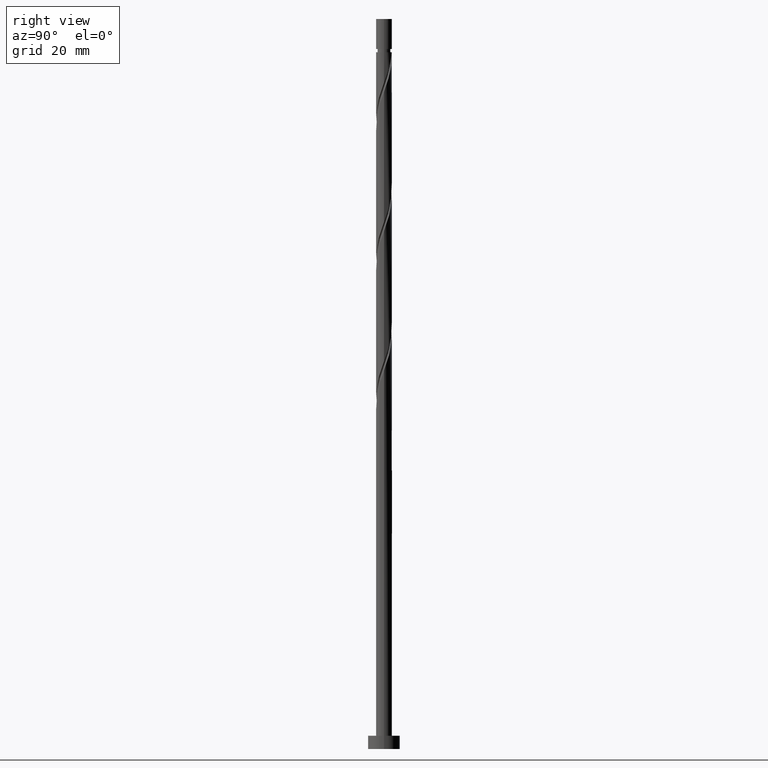
[diagram: clean part render]
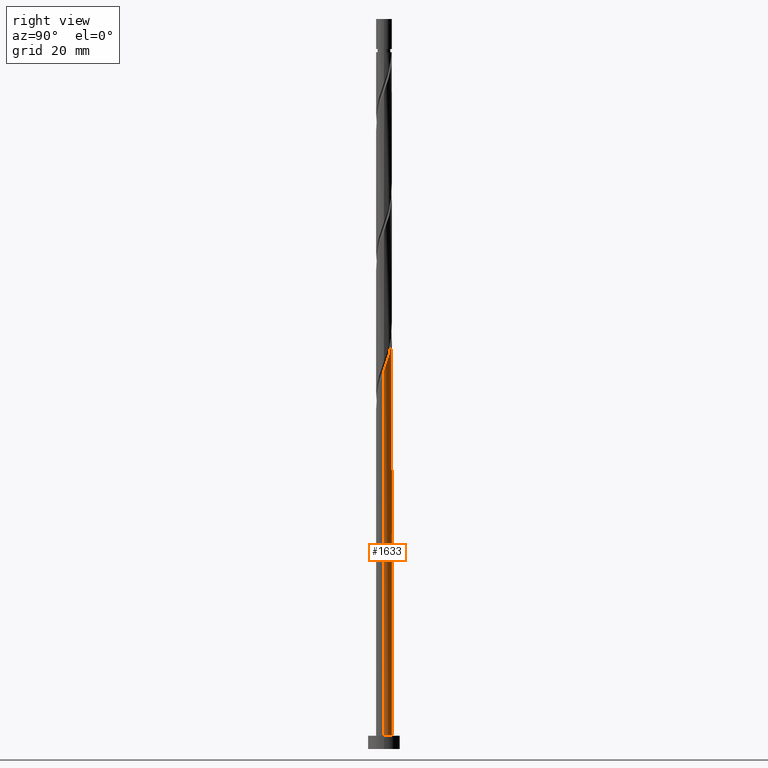
[diagram: same view with one face highlighted and labeled with its STEP entity id]
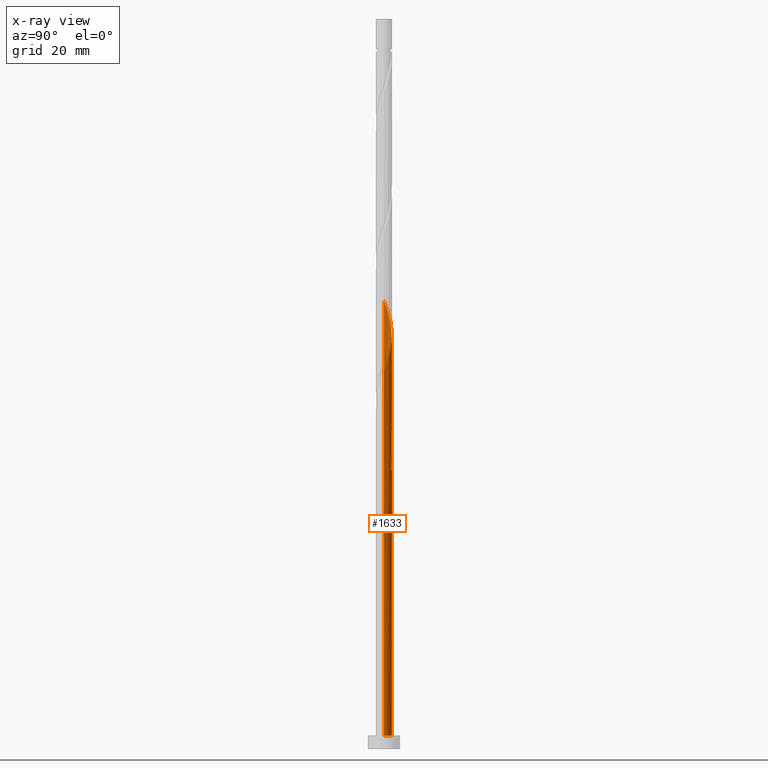
[diagram: x-ray of the same camera — body ghosted, the highlighted face saturated]
A machine part, right view. The second image highlights one B-rep face of the part: STEP entity #1633.
The next image is the same camera in x-ray: the body ghosted, the highlighted face saturated — about 0% of this face is hidden behind the body in this view.
In plain terms, the highlighted cylindrical surface (edge-blend (fillet) strip) has radius 3 mm, axis along (-0, -0, -1).
Its self-contained STEP definition (entity closure, byte-faithful):
#6 = EDGE_CURVE ( 'NONE', #752, #224, #465, .T. ) ;
#12 = CARTESIAN_POINT ( 'NONE',  ( -1.667239772048620727, 2.516856822501207791, 111.5294641503445519 ) ) ;
#30 = CARTESIAN_POINT ( 'NONE',  ( 0.5969924622639732892, 2.939999999999999947, 104.9669641503445376 ) ) ;
#50 = CARTESIAN_POINT ( 'NONE',  ( -2.940000000000000835, 0.5969924622639728451, 118.0919641503445234 ) ) ;
#71 = CARTESIAN_POINT ( 'NONE',  ( -3.000000000000004441, 0.03609869149918232961, 168.8170843842133593 ) ) ;
#73 = EDGE_CURVE ( 'NONE', #699, #552, #1096, .T. ) ;
#112 = CARTESIAN_POINT ( 'NONE',  ( -2.389823149881022513, 1.813489815877870059, 114.3419641503445234 ) ) ;
#115 = CARTESIAN_POINT ( 'NONE',  ( -1.544221415739432945, 2.594154378914896419, 160.2794641503445234 ) ) ;
#159 = AXIS2_PLACEMENT_3D ( 'NONE', #619, #460, #1178 ) ;
#163 = CYLINDRICAL_SURFACE ( 'NONE', #471, 3.000000000000000444 ) ;
#219 = CARTESIAN_POINT ( 'NONE',  ( 0.7377465701333740800, 2.907873793385206795, 153.7169641503445519 ) ) ;
#224 = VERTEX_POINT ( 'NONE', #1802 ) ;
#229 = CARTESIAN_POINT ( 'NONE',  ( 1.667239772048623614, 2.516856822501209567, 150.9044641503445234 ) ) ;
#238 = CARTESIAN_POINT ( 'NONE',  ( 2.389823149881026065, 1.813489815877872058, 148.0919641503445234 ) ) ;
#250 = CARTESIAN_POINT ( 'NONE',  ( -3.000000000000000444, 0.000000000000000000, 275.0000000000000000 ) ) ;
#255 = CARTESIAN_POINT ( 'NONE',  ( -2.733444741546703138, 1.236236160654865524, 116.2169641503445519 ) ) ;
#311 = CARTESIAN_POINT ( 'NONE',  ( -0.4101078809741731113, 2.990997868343352906, 107.7794641503445376 ) ) ;
#350 = CARTESIAN_POINT ( 'NONE',  ( -2.907873793385206795, 0.7377465701333737469, 114.3419641503445376 ) ) ;
#360 = CARTESIAN_POINT ( 'NONE',  ( -2.907873793385206795, 0.7377465701333737469, 166.8419641503445803 ) ) ;
#361 = CARTESIAN_POINT ( 'NONE',  ( 0.000000000000000000, 0.000000000000000000, 104.9669641503445376 ) ) ;
#362 = CARTESIAN_POINT ( 'NONE',  ( -1.544221415739432945, 2.594154378914896419, 107.7794641503445376 ) ) ;
#369 = CARTESIAN_POINT ( 'NONE',  ( -0.5969924622639722900, 2.940000000000004832, 157.4669641503446087 ) ) ;
#374 = ORIENTED_EDGE ( 'NONE', *, *, #433, .F. ) ;
#380 = CARTESIAN_POINT ( 'NONE',  ( -2.516856822501209567, 1.667239772048623170, 164.0294641503445234 ) ) ;
#395 = VERTEX_POINT ( 'NONE', #1545 ) ;
#415 = VERTEX_POINT ( 'NONE', #1701 ) ;
#418 = CARTESIAN_POINT ( 'NONE',  ( 3.000000000000005329, -8.433062039662194613E-16, 142.6674470724385344 ) ) ;
#433 = EDGE_CURVE ( 'NONE', #395, #1149, #544, .T. ) ;
#456 = CARTESIAN_POINT ( 'NONE',  ( -1.065385259292570996, 2.824749718427052692, 109.6544641503445661 ) ) ;
#460 = DIRECTION ( 'NONE',  ( 0.000000000000000000, 0.000000000000000000, 1.000000000000000000 ) ) ;
#465 = LINE ( 'NONE', #783, #1273 ) ;
#471 = AXIS2_PLACEMENT_3D ( 'NONE', #1189, #1803, #1215 ) ;
#500 = CARTESIAN_POINT ( 'NONE',  ( -0.5969924622639721790, 2.940000000000004832, 104.9669641503445376 ) ) ;
#510 = CARTESIAN_POINT ( 'NONE',  ( -2.990997868343356902, 0.4101078809741742215, 115.2794641503445376 ) ) ;
#525 = CARTESIAN_POINT ( 'NONE',  ( 3.000000000000005329, -8.433062039662193626E-16, 142.6674470724385344 ) ) ;
#531 = CARTESIAN_POINT ( 'NONE',  ( -0.9282509055702996559, 2.872735104178516075, 158.4044641503445234 ) ) ;
#542 = EDGE_CURVE ( 'NONE', #395, #1466, #694, .T. ) ;
#543 = CARTESIAN_POINT ( 'NONE',  ( 1.366312515670599081, 2.670803270464133128, 151.8419641503445519 ) ) ;
#544 =( BOUNDED_CURVE ( )  B_SPLINE_CURVE ( 2, ( #500, #1115, #1266, #362, #1259, #1400, #834, #1843, #1540, #1418, #350, #510, #1105, #652, #814 ),
 .UNSPECIFIED., .F., .T. ) 
 B_SPLINE_CURVE_WITH_KNOTS ( ( 3, 2, 2, 2, 2, 2, 2, 3 ),
 ( 0.000000000000000000, 0.008928571428571396851, 0.01785714285714290472, 0.02678571428571430157, 0.03571428571428569843, 0.04464285714285709528, 0.05357142857142860315, 0.05453034012992209051 ),
 .UNSPECIFIED. ) 
 CURVE ( )  GEOMETRIC_REPRESENTATION_ITEM ( )  RATIONAL_B_SPLINE_CURVE ( ( 0.9090909090909424783, 0.9033747362666175729, 0.9090909090909424783, 0.9033747362666175729, 0.9090909090909424783, 0.9033747362666175729, 0.9090909090909424783, 0.9033747362666175729, 0.9090909090909424783, 0.9033747362666175729, 0.9090909090909424783, 0.9033747362666175729, 0.9090909090909424783, 0.9084770030214842640, 0.9079949616362126275 ) ) 
 REPRESENTATION_ITEM ( '' )  );
#552 = VERTEX_POINT ( 'NONE', #952 ) ;
#563 = CARTESIAN_POINT ( 'NONE',  ( -2.872735104178513410, 0.9282509055702992118, 117.1544641503445661 ) ) ;
#566 = CARTESIAN_POINT ( 'NONE',  ( -3.000000000000000888, 0.3015113445777601320, 118.9282101492870112 ) ) ;
#568 = LINE ( 'NONE', #250, #1507 ) ;
#606 = EDGE_CURVE ( 'NONE', #1149, #415, #568, .T. ) ;
#619 = CARTESIAN_POINT ( 'NONE',  ( 0.000000000000000000, 0.000000000000000000, 5.000000000000000000 ) ) ;
#652 = CARTESIAN_POINT ( 'NONE',  ( -3.000000000000005329, 0.03609869149917187964, 116.3170843842134303 ) ) ;
#661 = EDGE_CURVE ( 'NONE', #552, #1466, #1879, .T. ) ;
#694 = CIRCLE ( 'NONE', #1560, 3.000000000000000444 ) ;
#699 = VERTEX_POINT ( 'NONE', #1346 ) ;
#703 = CARTESIAN_POINT ( 'NONE',  ( 2.594154378914896419, 1.544221415739432279, 147.1544641503444950 ) ) ;
#752 = VERTEX_POINT ( 'NONE', #525 ) ;
#761 = CARTESIAN_POINT ( 'NONE',  ( -1.926365846447885888, 2.299807519258758148, 112.4669641503445376 ) ) ;
#773 = CARTESIAN_POINT ( 'NONE',  ( -3.000000000000000444, 0.000000000000000000, 275.0000000000000000 ) ) ;
#783 = CARTESIAN_POINT ( 'NONE',  ( 3.000000000000000444, 3.673940397442060361E-16, 275.0000000000000000 ) ) ;
#788 = EDGE_CURVE ( 'NONE', #752, #699, #820, .T. ) ;
#814 = CARTESIAN_POINT ( 'NONE',  ( -3.000000000000005329, 4.253845453634912213E-16, 116.4174470724384918 ) ) ;
#816 = ORIENTED_EDGE ( 'NONE', *, *, #661, .F. ) ;
#820 =( BOUNDED_CURVE ( )  B_SPLINE_CURVE ( 2, ( #418, #1396, #1129, #990, #1426, #703, #238, #1290, #1698, #229, #543, #1439, #219, #1022, #873, #1604, #369, #531, #1459, #115, #1314, #979, #1132, #380, #1258, #1103, #360, #1871, #822, #71, #1853 ),
 .UNSPECIFIED., .F., .T. ) 
 B_SPLINE_CURVE_WITH_KNOTS ( ( 3, 2, 2, 2, 2, 2, 2, 2, 2, 2, 2, 2, 2, 2, 2, 3 ),
 ( 0.1795303401299223334, 0.1875000000000000000, 0.1964285714285713969, 0.2053571428571429047, 0.2142857142857143016, 0.2232142857142856984, 0.2321428571428570953, 0.2410714285714286031, 0.2500000000000000000, 0.2589285714285713969, 0.2678571428571429047, 0.2767857142857143016, 0.2857142857142856984, 0.2946428571428570953, 0.3035714285714286031, 0.3045303401299218060 ),
 .UNSPECIFIED. ) 
 CURVE ( )  GEOMETRIC_REPRESENTATION_ITEM ( )  RATIONAL_B_SPLINE_CURVE ( ( 0.9079949616362124054, 0.9039886423360760093, 0.9090909090909424783, 0.9033747362666175729, 0.9090909090909424783, 0.9033747362666175729, 0.9090909090909424783, 0.9033747362666175729, 0.9090909090909424783, 0.9033747362666175729, 0.9090909090909424783, 0.9033747362666175729, 0.9090909090909424783, 0.9033747362666175729, 0.9090909090909424783, 0.9033747362666175729, 0.9090909090909424783, 0.9033747362666175729, 0.9090909090909424783, 0.9033747362666175729, 0.9090909090909424783, 0.9033747362666175729, 0.9090909090909424783, 0.9033747362666175729, 0.9090909090909424783, 0.9033747362666175729, 0.9090909090909424783, 0.9033747362666175729, 0.9090909090909424783, 0.9084770030214844860, 0.9079949616362128495 ) ) 
 REPRESENTATION_ITEM ( '' )  );
#822 = CARTESIAN_POINT ( 'NONE',  ( -2.999131382082425468, 0.07218693100826420461, 168.7169641503445803 ) ) ;
#834 = CARTESIAN_POINT ( 'NONE',  ( -2.299807519258761701, 1.926365846447889663, 110.5919641503445661 ) ) ;
#856 = CARTESIAN_POINT ( 'NONE',  ( -2.185491920847151714, 2.082758216016308506, 113.4044641503445661 ) ) ;
#863 = CARTESIAN_POINT ( 'NONE',  ( -3.000000000000000000, -8.044991928102567306E-15, 119.7664812282506119 ) ) ;
#873 = CARTESIAN_POINT ( 'NONE',  ( 0.07218693100826482911, 2.999131382082425024, 155.5919641503446371 ) ) ;
#893 = ORIENTED_EDGE ( 'NONE', *, *, #6, .T. ) ;
#921 = CARTESIAN_POINT ( 'NONE',  ( -0.07218693100826358011, 2.999131382082420583, 106.8419641503445661 ) ) ;
#933 = DIRECTION ( 'NONE',  ( -0.000000000000000000, -0.000000000000000000, -1.000000000000000000 ) ) ;
#952 = CARTESIAN_POINT ( 'NONE',  ( -3.000000000000000000, -8.044991928102567306E-15, 119.7664812282506119 ) ) ;
#971 = DIRECTION ( 'NONE',  ( 0.000000000000000000, -0.000000000000000000, -1.000000000000000000 ) ) ;
#979 = CARTESIAN_POINT ( 'NONE',  ( -2.082758216016310282, 2.185491920847154379, 162.1544641503444950 ) ) ;
#990 = CARTESIAN_POINT ( 'NONE',  ( 2.872735104178516075, 0.9282509055702992118, 145.2794641503445234 ) ) ;
#1022 = CARTESIAN_POINT ( 'NONE',  ( 0.4101078809741747211, 2.990997868343356902, 154.6544641503445519 ) ) ;
#1063 = CARTESIAN_POINT ( 'NONE',  ( -0.7377465701333723036, 2.907873793385203243, 108.7169641503445519 ) ) ;
#1096 = LINE ( 'NONE', #773, #1427 ) ;
#1103 = CARTESIAN_POINT ( 'NONE',  ( -2.824749718427055800, 1.065385259292572773, 165.9044641503445519 ) ) ;
#1105 = CARTESIAN_POINT ( 'NONE',  ( -2.999131382082425468, 0.07218693100826420461, 116.2169641503445661 ) ) ;
#1115 = CARTESIAN_POINT ( 'NONE',  ( -0.9282509055702996559, 2.872735104178516075, 105.9044641503445376 ) ) ;
#1129 = CARTESIAN_POINT ( 'NONE',  ( 2.940000000000004832, 0.5969924622639725120, 144.3419641503446371 ) ) ;
#1132 = CARTESIAN_POINT ( 'NONE',  ( -2.299807519258761701, 1.926365846447889663, 163.0919641503445234 ) ) ;
#1149 = VERTEX_POINT ( 'NONE', #1720 ) ;
#1178 = DIRECTION ( 'NONE',  ( 1.000000000000000000, 0.000000000000000000, 0.000000000000000000 ) ) ;
#1187 = ORIENTED_EDGE ( 'NONE', *, *, #1320, .T. ) ;
#1189 = CARTESIAN_POINT ( 'NONE',  ( 0.000000000000000000, 0.000000000000000000, 275.0000000000000000 ) ) ;
#1203 = DIRECTION ( 'NONE',  ( -0.000000000000000000, -0.000000000000000000, -1.000000000000000000 ) ) ;
#1215 = DIRECTION ( 'NONE',  ( -1.000000000000000000, 0.000000000000000000, 0.000000000000000000 ) ) ;
#1258 = CARTESIAN_POINT ( 'NONE',  ( -2.670803270464133572, 1.366312515670598415, 164.9669641503444950 ) ) ;
#1259 = CARTESIAN_POINT ( 'NONE',  ( -1.813489815877872502, 2.389823149881026065, 108.7169641503445661 ) ) ;
#1266 = CARTESIAN_POINT ( 'NONE',  ( -1.236236160654866856, 2.733444741546707579, 106.8419641503445661 ) ) ;
#1270 = ORIENTED_EDGE ( 'NONE', *, *, #542, .T. ) ;
#1273 = VECTOR ( 'NONE', #1203, 1000.000000000000000 ) ;
#1277 = ORIENTED_EDGE ( 'NONE', *, *, #606, .F. ) ;
#1290 = CARTESIAN_POINT ( 'NONE',  ( 2.185491920847155267, 2.082758216016309838, 149.0294641503445519 ) ) ;
#1314 = CARTESIAN_POINT ( 'NONE',  ( -1.813489815877872502, 2.389823149881026065, 161.2169641503446087 ) ) ;
#1320 = EDGE_CURVE ( 'NONE', #224, #415, #1476, .T. ) ;
#1344 = CARTESIAN_POINT ( 'NONE',  ( 0.5969924622639732892, 2.939999999999999947, 104.9669641503445376 ) ) ;
#1346 = CARTESIAN_POINT ( 'NONE',  ( -3.000000000000005329, 4.253845453634912213E-16, 168.9174470724385060 ) ) ;
#1396 = CARTESIAN_POINT ( 'NONE',  ( 3.000000000000002220, 0.3015113445777726775, 143.5057181514020783 ) ) ;
#1400 = CARTESIAN_POINT ( 'NONE',  ( -2.082758216016310282, 2.185491920847154379, 109.6544641503445661 ) ) ;
#1418 = CARTESIAN_POINT ( 'NONE',  ( -2.824749718427055800, 1.065385259292572773, 113.4044641503445376 ) ) ;
#1421 = ORIENTED_EDGE ( 'NONE', *, *, #788, .F. ) ;
#1426 = CARTESIAN_POINT ( 'NONE',  ( 2.733444741546707579, 1.236236160654866190, 146.2169641503446087 ) ) ;
#1427 = VECTOR ( 'NONE', #933, 1000.000000000000000 ) ;
#1439 = CARTESIAN_POINT ( 'NONE',  ( 1.065385259292573883, 2.824749718427055356, 152.7794641503445234 ) ) ;
#1459 = CARTESIAN_POINT ( 'NONE',  ( -1.236236160654866856, 2.733444741546707579, 159.3419641503445803 ) ) ;
#1466 = VERTEX_POINT ( 'NONE', #1344 ) ;
#1476 = CIRCLE ( 'NONE', #159, 3.000000000000000444 ) ;
#1502 = CARTESIAN_POINT ( 'NONE',  ( 0.2657340189576460898, 3.007264895821488260, 105.9044641503445519 ) ) ;
#1507 = VECTOR ( 'NONE', #1892, 1000.000000000000000 ) ;
#1508 = FACE_OUTER_BOUND ( 'NONE', #1847, .T. ) ;
#1540 = CARTESIAN_POINT ( 'NONE',  ( -2.670803270464133572, 1.366312515670598415, 112.4669641503445661 ) ) ;
#1545 = CARTESIAN_POINT ( 'NONE',  ( -0.5969924622639721790, 2.940000000000004832, 104.9669641503445376 ) ) ;
#1560 = AXIS2_PLACEMENT_3D ( 'NONE', #361, #971, #1723 ) ;
#1604 = CARTESIAN_POINT ( 'NONE',  ( -0.2657340189576452572, 3.007264895821491812, 156.5294641503445519 ) ) ;
#1633 = ADVANCED_FACE ( 'NONE', ( #1508 ), #163, .T. ) ;
#1698 = CARTESIAN_POINT ( 'NONE',  ( 1.926365846447889885, 2.299807519258761257, 149.9669641503445519 ) ) ;
#1701 = CARTESIAN_POINT ( 'NONE',  ( -3.000000000000000444, 0.000000000000000000, 5.000000000000000000 ) ) ;
#1720 = CARTESIAN_POINT ( 'NONE',  ( -3.000000000000005329, 4.253845453634912213E-16, 116.4174470724384918 ) ) ;
#1723 = DIRECTION ( 'NONE',  ( -1.000000000000000000, 0.000000000000000000, 0.000000000000000000 ) ) ;
#1793 = CARTESIAN_POINT ( 'NONE',  ( -1.366312515670595751, 2.670803270464129131, 110.5919641503445234 ) ) ;
#1802 = CARTESIAN_POINT ( 'NONE',  ( 3.000000000000000444, 3.673940397442060361E-16, 5.000000000000000000 ) ) ;
#1803 = DIRECTION ( 'NONE',  ( -0.000000000000000000, -0.000000000000000000, -1.000000000000000000 ) ) ;
#1843 = CARTESIAN_POINT ( 'NONE',  ( -2.516856822501209567, 1.667239772048623170, 111.5294641503445092 ) ) ;
#1847 = EDGE_LOOP ( 'NONE', ( #1421, #893, #1187, #1277, #374, #1270, #816, #1865 ) ) ;
#1853 = CARTESIAN_POINT ( 'NONE',  ( -3.000000000000005329, 4.253845453634912213E-16, 168.9174470724385060 ) ) ;
#1865 = ORIENTED_EDGE ( 'NONE', *, *, #73, .F. ) ;
#1871 = CARTESIAN_POINT ( 'NONE',  ( -2.990997868343356902, 0.4101078809741742215, 167.7794641503445234 ) ) ;
#1879 =( BOUNDED_CURVE ( )  B_SPLINE_CURVE ( 2, ( #863, #566, #50, #563, #255, #1905, #112, #856, #761, #12, #1793, #456, #1063, #311, #921, #1502, #30 ),
 .UNSPECIFIED., .F., .T. ) 
 B_SPLINE_CURVE_WITH_KNOTS ( ( 3, 2, 2, 2, 2, 2, 2, 2, 3 ),
 ( 0.9295303401299219725, 0.9375000000000000000, 0.9464285714285713969, 0.9553571428571429047, 0.9642857142857143016, 0.9732142857142856984, 0.9821428571428570953, 0.9910714285714286031, 1.000000000000000000 ),
 .UNSPECIFIED. ) 
 CURVE ( )  GEOMETRIC_REPRESENTATION_ITEM ( )  RATIONAL_B_SPLINE_CURVE ( ( 0.9079949616362070763, 0.9039886423360699030, 0.9090909090909368162, 0.9033747362666115777, 0.9090909090909368162, 0.9033747362666115777, 0.9090909090909368162, 0.9033747362666115777, 0.9090909090909368162, 0.9033747362666115777, 0.9090909090909368162, 0.9033747362666115777, 0.9090909090909368162, 0.9033747362666115777, 0.9090909090909368162, 0.9033747362666115777, 0.9090909090909368162 ) ) 
 REPRESENTATION_ITEM ( '' )  );
#1892 = DIRECTION ( 'NONE',  ( -0.000000000000000000, -0.000000000000000000, -1.000000000000000000 ) ) ;
#1905 = CARTESIAN_POINT ( 'NONE',  ( -2.594154378914893755, 1.544221415739431835, 115.2794641503445661 ) ) ;